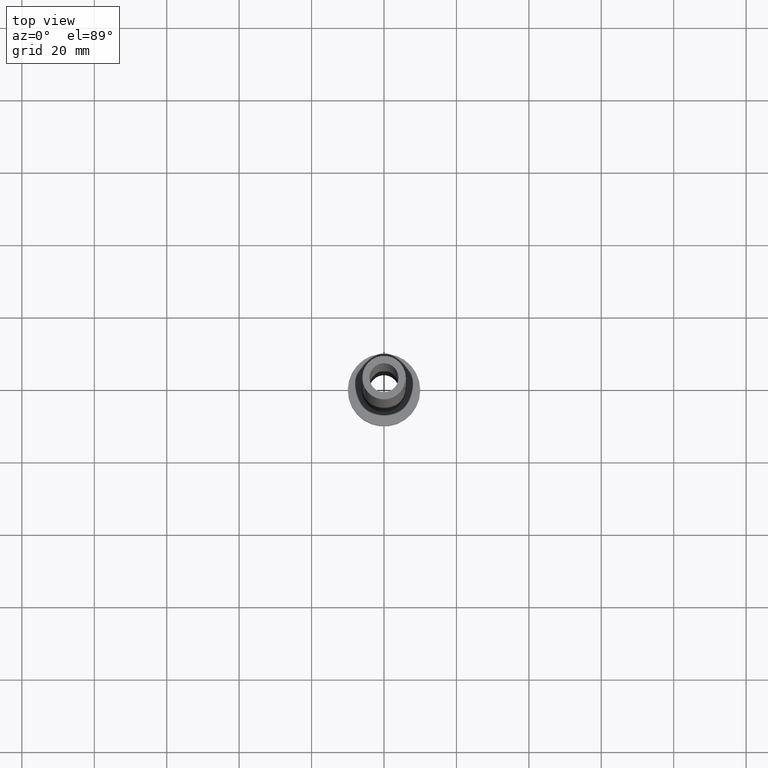
[diagram: clean part render]
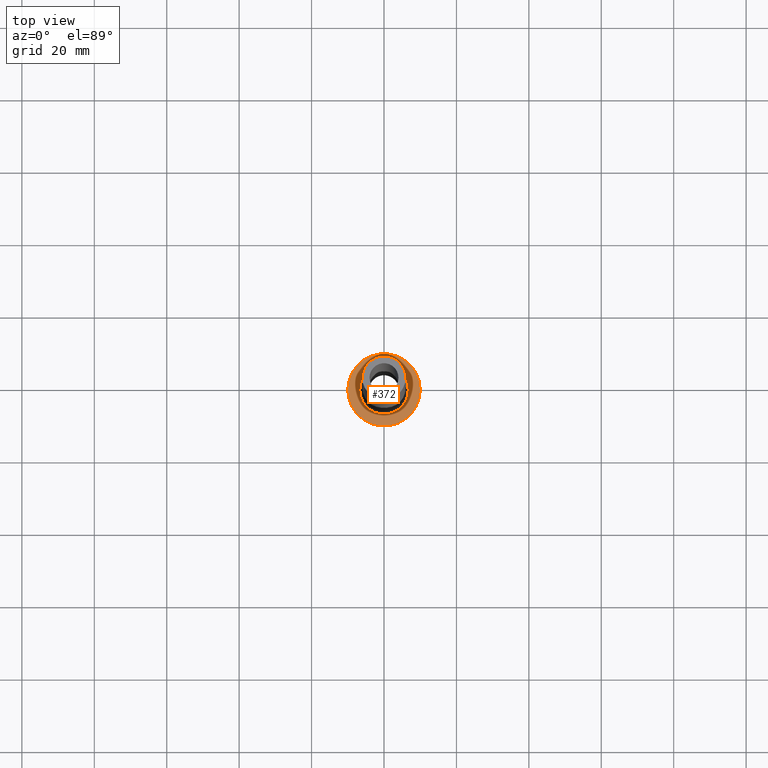
[diagram: same view with one face highlighted and labeled with its STEP entity id]
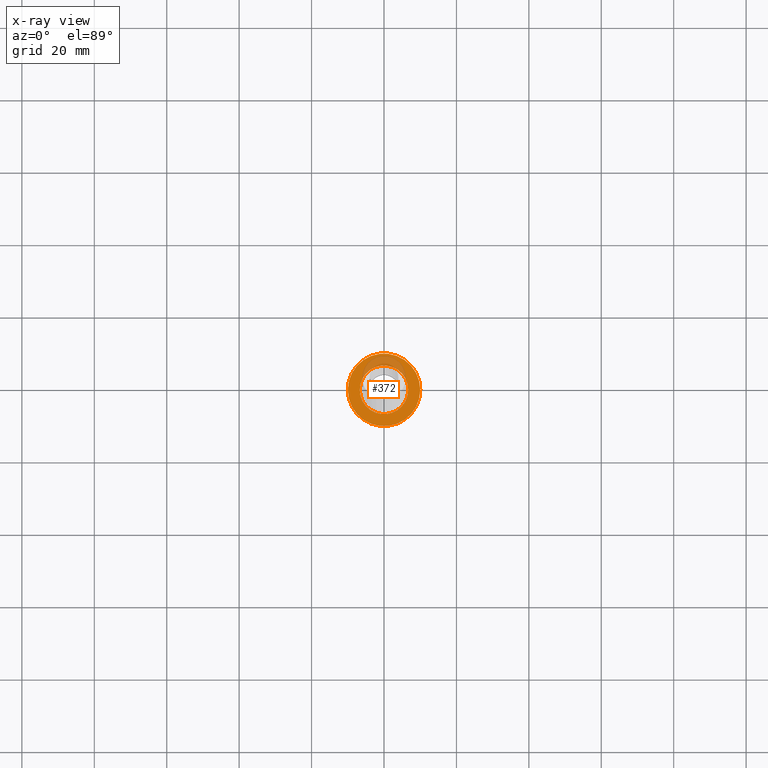
[diagram: x-ray of the same camera — body ghosted, the highlighted face saturated]
A machine part, top view. The second image highlights one B-rep face of the part: STEP entity #372.
The next image is the same camera in x-ray: the body ghosted, the highlighted face saturated — about 17% of this face is hidden behind the body in this view.
In plain terms, the highlighted planar face has unit normal (0, 0, 1).
Its self-contained STEP definition (entity closure, byte-faithful):
#12 = CARTESIAN_POINT ( 'NONE',  ( 0.000000000000000000, 0.000000000000000000, 7.000000000000000000 ) ) ;
#17 = CARTESIAN_POINT ( 'NONE',  ( 10.00000000000000000, 1.224646799147353256E-15, 7.000000000000000000 ) ) ;
#26 = FACE_OUTER_BOUND ( 'NONE', #61, .T. ) ;
#30 = DIRECTION ( 'NONE',  ( 0.000000000000000000, 0.000000000000000000, 1.000000000000000000 ) ) ;
#33 = AXIS2_PLACEMENT_3D ( 'NONE', #255, #403, #43 ) ;
#38 = CIRCLE ( 'NONE', #109, 6.700000000000001066 ) ;
#43 = DIRECTION ( 'NONE',  ( 1.000000000000000000, 0.000000000000000000, 0.000000000000000000 ) ) ;
#61 = EDGE_LOOP ( 'NONE', ( #413, #339 ) ) ;
#65 = EDGE_CURVE ( 'NONE', #356, #332, #387, .T. ) ;
#67 = ORIENTED_EDGE ( 'NONE', *, *, #97, .T. ) ;
#75 = CARTESIAN_POINT ( 'NONE',  ( 0.000000000000000000, 0.000000000000000000, 7.000000000000000000 ) ) ;
#97 = EDGE_CURVE ( 'NONE', #332, #356, #38, .T. ) ;
#109 = AXIS2_PLACEMENT_3D ( 'NONE', #12, #325, #330 ) ;
#125 = VERTEX_POINT ( 'NONE', #404 ) ;
#130 = EDGE_CURVE ( 'NONE', #125, #371, #203, .T. ) ;
#192 = DIRECTION ( 'NONE',  ( 1.000000000000000000, 0.000000000000000000, 0.000000000000000000 ) ) ;
#203 = CIRCLE ( 'NONE', #33, 10.00000000000000000 ) ;
#229 = AXIS2_PLACEMENT_3D ( 'NONE', #75, #431, #261 ) ;
#255 = CARTESIAN_POINT ( 'NONE',  ( 0.000000000000000000, 0.000000000000000000, 7.000000000000000000 ) ) ;
#261 = DIRECTION ( 'NONE',  ( 1.000000000000000000, 0.000000000000000000, 0.000000000000000000 ) ) ;
#264 = PLANE ( 'NONE',  #456 ) ;
#271 = FACE_BOUND ( 'NONE', #449, .T. ) ;
#272 = ORIENTED_EDGE ( 'NONE', *, *, #65, .T. ) ;
#298 = CARTESIAN_POINT ( 'NONE',  ( -6.700000000000001066, 8.205133554287267548E-16, 7.000000000000006217 ) ) ;
#325 = DIRECTION ( 'NONE',  ( -0.000000000000000000, -0.000000000000000000, -1.000000000000000000 ) ) ;
#330 = DIRECTION ( 'NONE',  ( 1.000000000000000000, 0.000000000000000000, 0.000000000000000000 ) ) ;
#331 = CARTESIAN_POINT ( 'NONE',  ( 0.000000000000000000, 0.000000000000000000, 7.000000000000000000 ) ) ;
#332 = VERTEX_POINT ( 'NONE', #298 ) ;
#339 = ORIENTED_EDGE ( 'NONE', *, *, #362, .T. ) ;
#340 = DIRECTION ( 'NONE',  ( 0.000000000000000000, 0.000000000000000000, 1.000000000000000000 ) ) ;
#356 = VERTEX_POINT ( 'NONE', #370 ) ;
#362 = EDGE_CURVE ( 'NONE', #371, #125, #420, .T. ) ;
#370 = CARTESIAN_POINT ( 'NONE',  ( 6.700000000000001066, 0.000000000000000000, 7.000000000000006217 ) ) ;
#371 = VERTEX_POINT ( 'NONE', #17 ) ;
#372 = ADVANCED_FACE ( 'NONE', ( #271, #26 ), #264, .T. ) ;
#387 = CIRCLE ( 'NONE', #229, 6.700000000000001066 ) ;
#398 = AXIS2_PLACEMENT_3D ( 'NONE', #331, #340, #192 ) ;
#403 = DIRECTION ( 'NONE',  ( 0.000000000000000000, 0.000000000000000000, 1.000000000000000000 ) ) ;
#404 = CARTESIAN_POINT ( 'NONE',  ( -10.00000000000000000, 0.000000000000000000, 7.000000000000000000 ) ) ;
#413 = ORIENTED_EDGE ( 'NONE', *, *, #130, .T. ) ;
#420 = CIRCLE ( 'NONE', #398, 10.00000000000000000 ) ;
#431 = DIRECTION ( 'NONE',  ( -0.000000000000000000, -0.000000000000000000, -1.000000000000000000 ) ) ;
#438 = DIRECTION ( 'NONE',  ( 1.000000000000000000, 0.000000000000000000, -0.000000000000000000 ) ) ;
#448 = CARTESIAN_POINT ( 'NONE',  ( 0.000000000000000000, 0.000000000000000000, 7.000000000000000000 ) ) ;
#449 = EDGE_LOOP ( 'NONE', ( #272, #67 ) ) ;
#456 = AXIS2_PLACEMENT_3D ( 'NONE', #448, #30, #438 ) ;